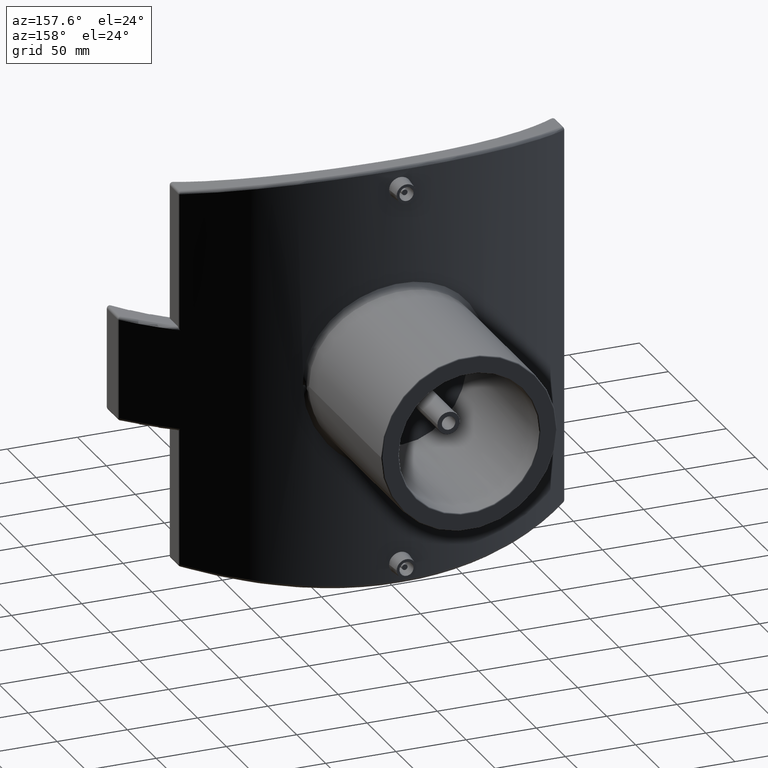
[diagram: clean part render]
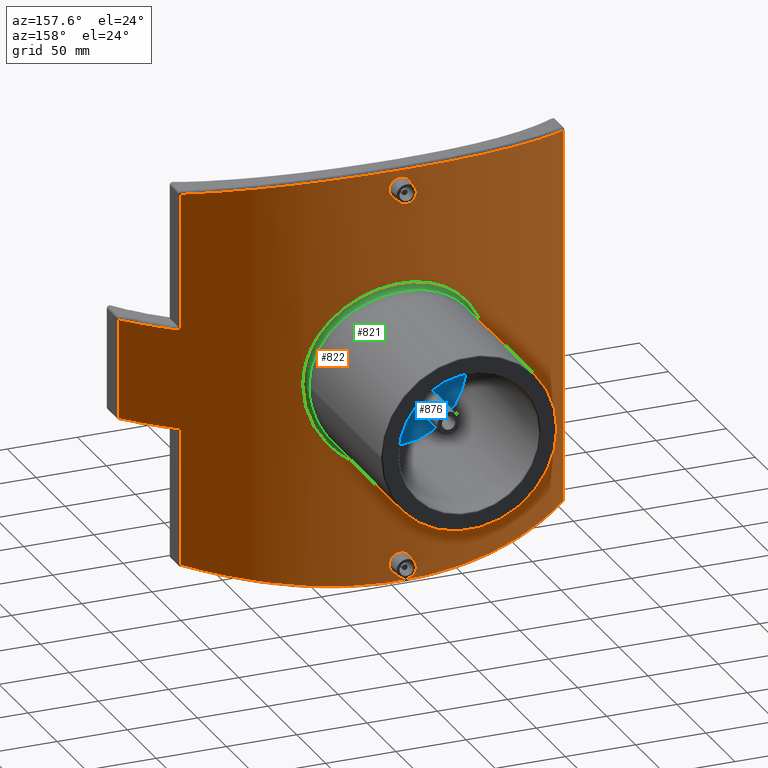
[diagram: same view with three faces highlighted in distinct colors, each labeled with its STEP entity id]
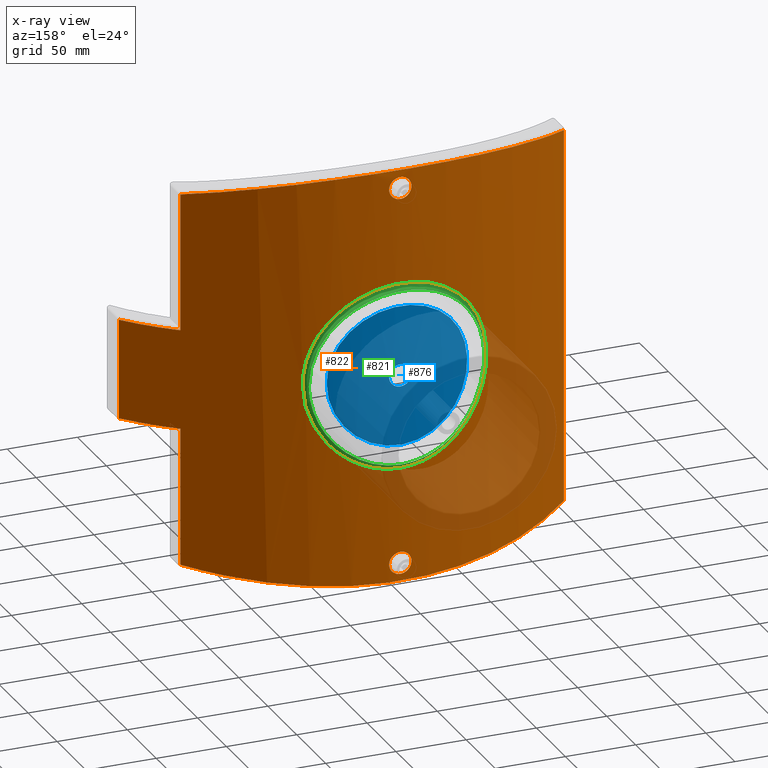
[diagram: x-ray of the same camera — body ghosted, the three highlighted faces saturated]
A machine part, auxiliary view with three faces highlighted in distinct colors.
The next image is the same camera in x-ray (body ghosted, the three faces saturated) — at least one of them is partly hidden behind the body in this view.
Their STEP definitions:

[orange] entity #822 — the highlighted cylindrical surface (partial cylindrical patch) has radius 215 mm, axis along (0, 0, 1).
#29=LINE('',#1550,#59);
#30=LINE('',#1554,#60);
#31=LINE('',#1567,#61);
#32=LINE('',#1580,#62);
#59=VECTOR('',#1032,71.);
#60=VECTOR('',#1035,97.892004877097);
#61=VECTOR('',#1036,266.784009754194);
#62=VECTOR('',#1037,97.892004877097);
#96=B_SPLINE_CURVE_WITH_KNOTS('',3,(#1522,#1523,#1524,#1525,#1526,#1527,
#1528,#1529,#1530,#1531,#1532,#1533,#1534,#1535,#1536,#1537,#1538,#1539,
#1540,#1541,#1542,#1543,#1544,#1545,#1546),.UNSPECIFIED.,.T.,.F.,(4,1,1,
1,1,1,1,1,1,1,1,1,1,1,1,1,1,1,1,1,1,1,4),(-37.9059269029769,-36.5521437992992,
-35.1983606956214,-32.4907944882659,-30.6857503500289,-28.8807062117919,
-27.0756620735549,-26.1731400044364,-25.7218789698772,-25.2706179353179,
-21.6605296588439,-19.855485520607,-18.05044138237,-16.245397244133,-14.440353105896,
-12.635308967659,-10.830264829422,-9.02522069118498,-7.22017655294798,-5.41513241471099,
-2.70756620735549,-1.35378310367775,5.62016446944895E-19),.UNSPECIFIED.);
#97=B_SPLINE_CURVE_WITH_KNOTS('',3,(#1556,#1557,#1558,#1559,#1560,#1561,
#1562,#1563,#1564,#1565),.UNSPECIFIED.,.F.,.F.,(4,1,1,1,1,1,1,4),(-34.0611602883262,
-29.8484664557769,-25.6357726232275,-21.4230787906782,-17.2103849581289,
-12.9976911255795,-8.7849972930302,-4.57230346048087),.UNSPECIFIED.);
#98=B_SPLINE_CURVE_WITH_KNOTS('',3,(#1569,#1570,#1571,#1572,#1573,#1574,
#1575,#1576,#1577,#1578),.UNSPECIFIED.,.F.,.F.,(4,1,1,1,1,1,1,4),(-30.7360959862472,
-26.523402153698,-22.3107083211488,-18.0980144885995,-13.8853206560503,
-9.67262682350105,-5.45993299095181,-1.24723915840258),.UNSPECIFIED.);
#99=B_SPLINE_CURVE_WITH_KNOTS('',3,(#1583,#1584,#1585,#1586,#1587,#1588,
#1589,#1590,#1591,#1592,#1593,#1594,#1595,#1596,#1597,#1598,#1599,#1600,
#1601,#1602,#1603,#1604,#1605,#1606,#1607,#1608,#1609,#1610,#1611,#1612,
#1613,#1614,#1615,#1616),.UNSPECIFIED.,.T.,.F.,(4,2,2,2,2,2,2,2,2,2,2,2,
2,2,2,2,4),(0.,0.298939862461717,0.597879724923433,0.896709336524648,1.19553894812586,
1.49436855972708,1.79319817132829,2.09213803379001,2.39107789625172,2.69001775871344,
2.98895762117516,3.28778723277637,3.58661684437759,3.8854464559788,4.18427606758001,
4.48321593004173,4.78215579250345),.UNSPECIFIED.);
#100=B_SPLINE_CURVE_WITH_KNOTS('',3,(#1618,#1619,#1620,#1621,#1622,#1623,
#1624,#1625,#1626,#1627,#1628,#1629,#1630,#1631,#1632,#1633,#1634,#1635,
#1636,#1637,#1638,#1639,#1640,#1641,#1642,#1643,#1644,#1645,#1646,#1647,
#1648,#1649,#1650,#1651),.UNSPECIFIED.,.T.,.F.,(4,2,2,2,2,2,2,2,2,2,2,2,
2,2,2,2,4),(0.,0.298939862461717,0.597879724923433,0.896709336524648,1.19553894812586,
1.49436855972708,1.79319817132829,2.09213803379001,2.39107789625172,2.69001775871344,
2.98895762117516,3.28778723277637,3.58661684437759,3.8854464559788,4.18427606758001,
4.48321593004173,4.78215579250345),.UNSPECIFIED.);
#117=CYLINDRICAL_SURFACE('',#894,215.);
#161=FACE_BOUND('',#257,.T.);
#162=FACE_BOUND('',#258,.T.);
#163=FACE_BOUND('',#259,.T.);
#185=FACE_OUTER_BOUND('',#256,.T.);
#256=EDGE_LOOP('',(#596,#597,#598,#599,#600,#601,#602,#603));
#257=EDGE_LOOP('',(#604));
#258=EDGE_LOOP('',(#605));
#259=EDGE_LOOP('',(#606));
#339=CIRCLE('',#895,215.);
#340=CIRCLE('',#896,215.);
#403=VERTEX_POINT('',#1520);
#404=VERTEX_POINT('',#1548);
#405=VERTEX_POINT('',#1549);
#406=VERTEX_POINT('',#1551);
#407=VERTEX_POINT('',#1553);
#408=VERTEX_POINT('',#1555);
#409=VERTEX_POINT('',#1566);
#410=VERTEX_POINT('',#1568);
#411=VERTEX_POINT('',#1579);
#412=VERTEX_POINT('',#1582);
#413=VERTEX_POINT('',#1617);
#475=EDGE_CURVE('',#403,#403,#96,.T.);
#476=EDGE_CURVE('',#404,#405,#29,.T.);
#477=EDGE_CURVE('',#406,#404,#339,.T.);
#478=EDGE_CURVE('',#407,#406,#30,.T.);
#479=EDGE_CURVE('',#408,#407,#97,.T.);
#480=EDGE_CURVE('',#409,#408,#31,.T.);
#481=EDGE_CURVE('',#410,#409,#98,.T.);
#482=EDGE_CURVE('',#411,#410,#32,.T.);
#483=EDGE_CURVE('',#405,#411,#340,.T.);
#484=EDGE_CURVE('',#412,#412,#99,.T.);
#485=EDGE_CURVE('',#413,#413,#100,.T.);
#596=ORIENTED_EDGE('',*,*,#476,.F.);
#597=ORIENTED_EDGE('',*,*,#477,.F.);
#598=ORIENTED_EDGE('',*,*,#478,.F.);
#599=ORIENTED_EDGE('',*,*,#479,.F.);
#600=ORIENTED_EDGE('',*,*,#480,.F.);
#601=ORIENTED_EDGE('',*,*,#481,.F.);
#602=ORIENTED_EDGE('',*,*,#482,.F.);
#603=ORIENTED_EDGE('',*,*,#483,.F.);
#604=ORIENTED_EDGE('',*,*,#484,.T.);
#605=ORIENTED_EDGE('',*,*,#485,.T.);
#606=ORIENTED_EDGE('',*,*,#475,.F.);
#822=ADVANCED_FACE('',(#185,#161,#162,#163),#117,.T.);
#894=AXIS2_PLACEMENT_3D('',#1547,#1030,#1031);
#895=AXIS2_PLACEMENT_3D('',#1552,#1033,#1034);
#896=AXIS2_PLACEMENT_3D('',#1581,#1038,#1039);
#1030=DIRECTION('center_axis',(0.,0.,1.));
#1031=DIRECTION('ref_axis',(1.,0.,0.));
#1032=DIRECTION('',(0.,0.,1.));
#1033=DIRECTION('center_axis',(0.,0.,-1.));
#1034=DIRECTION('ref_axis',(0.712959302615589,0.701205414136181,0.));
#1035=DIRECTION('',(0.,0.,1.));
#1036=DIRECTION('',(0.,0.,-1.));
#1037=DIRECTION('',(0.,0.,1.));
#1038=DIRECTION('center_axis',(0.,0.,1.));
#1039=DIRECTION('ref_axis',(0.712959302615589,0.701205414136181,0.));
#1520=CARTESIAN_POINT('',(65.2853881278539,204.848280678641,-1.38777878078145E-16));
#1522=CARTESIAN_POINT('Ctrl Pts',(65.2859122121715,204.847903698663,-1.13261167197488E-5));
#1523=CARTESIAN_POINT('Ctrl Pts',(65.2859243714107,204.847903253842,-5.00309979396538));
#1524=CARTESIAN_POINT('Ctrl Pts',(64.168084313145,205.209309998006,-15.0091696551822));
#1525=CARTESIAN_POINT('Ctrl Pts',(57.6387398921487,207.201109504241,-33.9284075988963));
#1526=CARTESIAN_POINT('Ctrl Pts',(44.1987825445167,210.724826544655,-51.0542014170923));
#1527=CARTESIAN_POINT('Ctrl Pts',(24.3275066323611,213.887911001206,-62.7851596477802));
#1528=CARTESIAN_POINT('Ctrl Pts',(4.99033819610538,215.25076705005,-67.3267396865838));
#1529=CARTESIAN_POINT('Ctrl Pts',(-11.5382168369266,214.858487692808,-66.0473863187583));
#1530=CARTESIAN_POINT('Ctrl Pts',(-22.4768318304903,213.859552368514,-62.5897313603868));
#1531=CARTESIAN_POINT('Ctrl Pts',(-28.4406780591776,213.125497936517,-59.9246192414683));
#1532=CARTESIAN_POINT('Ctrl Pts',(-42.8214232068404,211.060968241871,-52.1834137350143));
#1533=CARTESIAN_POINT('Ctrl Pts',(-57.7038679476369,207.238858348076,-35.8310602116687));
#1534=CARTESIAN_POINT('Ctrl Pts',(-65.5236918765616,204.772562548069,-10.1303949029514));
#1535=CARTESIAN_POINT('Ctrl Pts',(-65.5328612179798,204.772178900979,10.1325935121219));
#1536=CARTESIAN_POINT('Ctrl Pts',(-59.6469237060448,206.621521945999,29.3975165414196));
#1537=CARTESIAN_POINT('Ctrl Pts',(-48.5594895770632,209.592850552179,45.9087918437748));
#1538=CARTESIAN_POINT('Ctrl Pts',(-33.227604917604,212.650797371595,58.3937554389062));
#1539=CARTESIAN_POINT('Ctrl Pts',(-14.8455986581833,214.781457165151,65.794248836055));
#1540=CARTESIAN_POINT('Ctrl Pts',(4.992531698333,215.250168370365,67.3255910473545));
#1541=CARTESIAN_POINT('Ctrl Pts',(24.3278048312172,213.888056536787,62.7852621007934));
#1542=CARTESIAN_POINT('Ctrl Pts',(44.1991756207419,210.72459813921,51.053713633087));
#1543=CARTESIAN_POINT('Ctrl Pts',(57.6389955057348,207.201097014482,33.9278918120269));
#1544=CARTESIAN_POINT('Ctrl Pts',(64.1680113577101,205.209312666933,15.0093611519098));
#1545=CARTESIAN_POINT('Ctrl Pts',(65.2859000529324,204.847904143484,5.00307714173196));
#1546=CARTESIAN_POINT('Ctrl Pts',(65.2859122121715,204.847903698663,-1.13261167197488E-5));
#1547=CARTESIAN_POINT('Origin',(0.,0.,0.));
#1548=CARTESIAN_POINT('',(167.306338028169,135.031808310502,-35.5));
#1549=CARTESIAN_POINT('',(167.306338028169,135.031808310502,35.5));
#1550=CARTESIAN_POINT('',(167.306338028169,135.031808310502,0.));
#1551=CARTESIAN_POINT('',(136.519953051643,166.094257633361,-35.5));
#1552=CARTESIAN_POINT('Origin',(0.,0.,-35.5));
#1553=CARTESIAN_POINT('',(136.519953051643,166.09425763336,-133.392004877097));
#1554=CARTESIAN_POINT('',(136.519953051643,166.09425763336,0.));
#1555=CARTESIAN_POINT('',(-136.519953051643,166.09425763336,-133.392004877097));
#1556=CARTESIAN_POINT('Ctrl Pts',(-136.519953051643,166.09425763336,-133.392004877097));
#1557=CARTESIAN_POINT('Ctrl Pts',(-125.723502697251,174.968320569116,-135.729773666671));
#1558=CARTESIAN_POINT('Ctrl Pts',(-102.362985684374,190.63350263303,-140.2024056175));
#1559=CARTESIAN_POINT('Ctrl Pts',(-63.2085418360928,206.958738335174,-145.332973837477));
#1560=CARTESIAN_POINT('Ctrl Pts',(-21.3774493653246,215.348534643414,-148.114874392193));
#1561=CARTESIAN_POINT('Ctrl Pts',(21.3779264621199,215.349641375073,-148.115915715155));
#1562=CARTESIAN_POINT('Ctrl Pts',(63.2085369696898,206.957927193873,-145.332261953252));
#1563=CARTESIAN_POINT('Ctrl Pts',(102.36306947524,190.633803253483,-140.202709754539));
#1564=CARTESIAN_POINT('Ctrl Pts',(125.723153322602,174.968607735038,-135.729849317197));
#1565=CARTESIAN_POINT('Ctrl Pts',(136.519953051643,166.09425763336,-133.392004877097));
#1566=CARTESIAN_POINT('',(-136.519953051643,166.094257633361,133.392004877097));
#1567=CARTESIAN_POINT('',(-136.519953051643,166.094257633361,0.));
#1568=CARTESIAN_POINT('',(136.519953051643,166.094257633361,133.392004877097));
#1569=CARTESIAN_POINT('Ctrl Pts',(136.519953051643,166.094257633361,133.392004877097));
#1570=CARTESIAN_POINT('Ctrl Pts',(125.723153322602,174.968607735038,135.729849317197));
#1571=CARTESIAN_POINT('Ctrl Pts',(102.362954510343,190.633498880703,140.202408929763));
#1572=CARTESIAN_POINT('Ctrl Pts',(63.2088293749993,206.958599912462,145.332928480881));
#1573=CARTESIAN_POINT('Ctrl Pts',(21.3776392347904,215.348569376209,148.11488559005));
#1574=CARTESIAN_POINT('Ctrl Pts',(-21.3777395679149,215.349596485162,148.11590116896));
#1575=CARTESIAN_POINT('Ctrl Pts',(-63.2082628580006,206.958055565316,145.332304108498));
#1576=CARTESIAN_POINT('Ctrl Pts',(-102.363094452045,190.63381078274,140.202707645887));
#1577=CARTESIAN_POINT('Ctrl Pts',(-125.723502697253,174.968320569114,135.72977366667));
#1578=CARTESIAN_POINT('Ctrl Pts',(-136.519953051643,166.09425763336,133.392004877097));
#1579=CARTESIAN_POINT('',(136.519953051643,166.09425763336,35.5));
#1580=CARTESIAN_POINT('',(136.519953051643,166.09425763336,0.));
#1581=CARTESIAN_POINT('Origin',(0.,0.,35.5));
#1582=CARTESIAN_POINT('',(7.94021187234381,214.853329123433,-135.));
#1583=CARTESIAN_POINT('Ctrl Pts',(-7.94021187234381,214.853329123433,-135.));
#1584=CARTESIAN_POINT('Ctrl Pts',(-7.94021187234381,214.853329123433,-135.996466208206));
#1585=CARTESIAN_POINT('Ctrl Pts',(-7.74052143677593,214.860999612224,-137.05910120673));
#1586=CARTESIAN_POINT('Ctrl Pts',(-6.92901799045989,214.888700344615,-139.013203535085));
#1587=CARTESIAN_POINT('Ctrl Pts',(-6.31721954357068,214.908330851865,-139.904682559071));
#1588=CARTESIAN_POINT('Ctrl Pts',(-4.90667416952584,214.945160712395,-141.311565725442));
#1589=CARTESIAN_POINT('Ctrl Pts',(-4.01400272521873,214.964750037002,-141.92091035169));
#1590=CARTESIAN_POINT('Ctrl Pts',(-2.05871690764931,214.992366517964,-142.728815334707));
#1591=CARTESIAN_POINT('Ctrl Pts',(-0.996098705337381,215.,-142.927379833375));
#1592=CARTESIAN_POINT('Ctrl Pts',(0.996098705337382,215.,-142.927379833375));
#1593=CARTESIAN_POINT('Ctrl Pts',(2.0587169076493,214.992366517964,-142.728815334707));
#1594=CARTESIAN_POINT('Ctrl Pts',(4.01400272521873,214.964750037002,-141.92091035169));
#1595=CARTESIAN_POINT('Ctrl Pts',(4.90667416952584,214.945160712395,-141.311565725442));
#1596=CARTESIAN_POINT('Ctrl Pts',(6.31721954357068,214.908330851865,-139.904682559071));
#1597=CARTESIAN_POINT('Ctrl Pts',(6.92901799045987,214.888700344615,-139.013203535085));
#1598=CARTESIAN_POINT('Ctrl Pts',(7.74052143677592,214.860999612224,-137.05910120673));
#1599=CARTESIAN_POINT('Ctrl Pts',(7.9402118723438,214.853329123433,-135.996466208206));
#1600=CARTESIAN_POINT('Ctrl Pts',(7.9402118723438,214.853329123433,-134.003533791794));
#1601=CARTESIAN_POINT('Ctrl Pts',(7.74052143677593,214.860999612224,-132.94089879327));
#1602=CARTESIAN_POINT('Ctrl Pts',(6.92901799045991,214.888700344615,-130.986796464915));
#1603=CARTESIAN_POINT('Ctrl Pts',(6.31721954357068,214.908330851865,-130.095317440929));
#1604=CARTESIAN_POINT('Ctrl Pts',(4.90667416952584,214.945160712395,-128.688434274558));
#1605=CARTESIAN_POINT('Ctrl Pts',(4.01400272521873,214.964750037002,-128.07908964831));
#1606=CARTESIAN_POINT('Ctrl Pts',(2.05871690764931,214.992366517964,-127.271184665293));
#1607=CARTESIAN_POINT('Ctrl Pts',(0.996098705337383,215.,-127.072620166625));
#1608=CARTESIAN_POINT('Ctrl Pts',(-0.996098705337382,215.,-127.072620166625));
#1609=CARTESIAN_POINT('Ctrl Pts',(-2.05871690764931,214.992366517964,-127.271184665293));
#1610=CARTESIAN_POINT('Ctrl Pts',(-4.01400272521873,214.964750037002,-128.07908964831));
#1611=CARTESIAN_POINT('Ctrl Pts',(-4.90667416952584,214.945160712395,-128.688434274558));
#1612=CARTESIAN_POINT('Ctrl Pts',(-6.31721954357068,214.908330851865,-130.095317440929));
#1613=CARTESIAN_POINT('Ctrl Pts',(-6.92901799045989,214.888700344615,-130.986796464915));
#1614=CARTESIAN_POINT('Ctrl Pts',(-7.74052143677592,214.860999612224,-132.94089879327));
#1615=CARTESIAN_POINT('Ctrl Pts',(-7.94021187234381,214.853329123433,-134.003533791794));
#1616=CARTESIAN_POINT('Ctrl Pts',(-7.94021187234381,214.853329123433,-135.));
#1617=CARTESIAN_POINT('',(7.94021187234381,214.853329123433,135.));
#1618=CARTESIAN_POINT('Ctrl Pts',(7.94021187234381,214.853329123433,135.));
#1619=CARTESIAN_POINT('Ctrl Pts',(7.94021187234381,214.853329123433,135.996466208206));
#1620=CARTESIAN_POINT('Ctrl Pts',(7.74052143677593,214.860999612224,137.05910120673));
#1621=CARTESIAN_POINT('Ctrl Pts',(6.92901799045989,214.888700344615,139.013203535085));
#1622=CARTESIAN_POINT('Ctrl Pts',(6.31721954357068,214.908330851865,139.904682559071));
#1623=CARTESIAN_POINT('Ctrl Pts',(4.90667416952584,214.945160712395,141.311565725442));
#1624=CARTESIAN_POINT('Ctrl Pts',(4.01400272521873,214.964750037002,141.92091035169));
#1625=CARTESIAN_POINT('Ctrl Pts',(2.05871690764931,214.992366517964,142.728815334707));
#1626=CARTESIAN_POINT('Ctrl Pts',(0.996098705337381,215.,142.927379833375));
#1627=CARTESIAN_POINT('Ctrl Pts',(-0.99609870533738,215.,142.927379833375));
#1628=CARTESIAN_POINT('Ctrl Pts',(-2.05871690764931,214.992366517964,142.728815334707));
#1629=CARTESIAN_POINT('Ctrl Pts',(-4.01400272521873,214.964750037002,141.92091035169));
#1630=CARTESIAN_POINT('Ctrl Pts',(-4.90667416952584,214.945160712395,141.311565725442));
#1631=CARTESIAN_POINT('Ctrl Pts',(-6.31721954357068,214.908330851865,139.904682559071));
#1632=CARTESIAN_POINT('Ctrl Pts',(-6.92901799045987,214.888700344615,139.013203535085));
#1633=CARTESIAN_POINT('Ctrl Pts',(-7.74052143677592,214.860999612224,137.05910120673));
#1634=CARTESIAN_POINT('Ctrl Pts',(-7.9402118723438,214.853329123433,135.996466208206));
#1635=CARTESIAN_POINT('Ctrl Pts',(-7.9402118723438,214.853329123433,134.003533791794));
#1636=CARTESIAN_POINT('Ctrl Pts',(-7.74052143677593,214.860999612224,132.94089879327));
#1637=CARTESIAN_POINT('Ctrl Pts',(-6.92901799045991,214.888700344615,130.986796464915));
#1638=CARTESIAN_POINT('Ctrl Pts',(-6.31721954357068,214.908330851865,130.095317440929));
#1639=CARTESIAN_POINT('Ctrl Pts',(-4.90667416952584,214.945160712395,128.688434274558));
#1640=CARTESIAN_POINT('Ctrl Pts',(-4.01400272521874,214.964750037002,128.07908964831));
#1641=CARTESIAN_POINT('Ctrl Pts',(-2.05871690764931,214.992366517964,127.271184665293));
#1642=CARTESIAN_POINT('Ctrl Pts',(-0.996098705337383,215.,127.072620166625));
#1643=CARTESIAN_POINT('Ctrl Pts',(0.99609870533738,215.,127.072620166625));
#1644=CARTESIAN_POINT('Ctrl Pts',(2.05871690764931,214.992366517964,127.271184665293));
#1645=CARTESIAN_POINT('Ctrl Pts',(4.01400272521873,214.964750037002,128.07908964831));
#1646=CARTESIAN_POINT('Ctrl Pts',(4.90667416952583,214.945160712395,128.688434274558));
#1647=CARTESIAN_POINT('Ctrl Pts',(6.31721954357067,214.908330851865,130.095317440929));
#1648=CARTESIAN_POINT('Ctrl Pts',(6.92901799045989,214.888700344615,130.986796464915));
#1649=CARTESIAN_POINT('Ctrl Pts',(7.74052143677592,214.860999612224,132.94089879327));
#1650=CARTESIAN_POINT('Ctrl Pts',(7.94021187234381,214.853329123433,134.003533791794));
#1651=CARTESIAN_POINT('Ctrl Pts',(7.94021187234381,214.853329123433,135.));

[blue] entity #876 — the highlighted cylindrical surface (partial cylindrical patch) has radius 215 mm, axis along (0, 0, 1).
#94=B_SPLINE_CURVE_WITH_KNOTS('',3,(#1299,#1300,#1301,#1302,#1303,#1304,
#1305,#1306,#1307,#1308,#1309,#1310,#1311,#1312,#1313,#1314,#1315,#1316,
#1317,#1318,#1319,#1320,#1321,#1322,#1323,#1324,#1325,#1326,#1327,#1328,
#1329,#1330,#1331,#1332,#1333,#1334,#1335,#1336,#1337,#1338,#1339,#1340,
#1341,#1342,#1343,#1344,#1345,#1346,#1347,#1348,#1349,#1350,#1351,#1352,
#1353,#1354,#1355,#1356,#1357,#1358,#1359,#1360,#1361,#1362,#1363,#1364),
 .UNSPECIFIED.,.T.,.F.,(4,2,2,2,2,2,2,2,2,2,2,2,2,2,2,2,2,2,2,2,2,2,2,2,
2,2,2,2,2,2,2,2,4),(0.,0.945503451316623,1.89100690263325,2.83651035394987,
3.78201380526649,4.72741907452344,5.67282434378038,6.61822961303733,7.56363488229428,
8.50904015155122,9.45444542080817,10.3998506900651,11.3452559593221,12.2907594106387,
13.2362628619553,14.1817663132719,15.1272697645886,16.0727732159052,17.0182766672218,
17.9637801185384,18.909283569855,19.854688839112,20.8000941083689,21.7454993776259,
22.6909046468828,23.6363099161398,24.5817151853967,25.5271204546537,26.4725257239106,
27.4180291752272,28.3635326265439,29.3090360778605,30.2545395291771),
 .UNSPECIFIED.);
#102=B_SPLINE_CURVE_WITH_KNOTS('',3,(#1695,#1696,#1697,#1698,#1699,#1700,
#1701,#1702,#1703,#1704,#1705,#1706,#1707,#1708,#1709,#1710,#1711,#1712,
#1713,#1714,#1715,#1716,#1717,#1718,#1719,#1720,#1721,#1722,#1723,#1724,
#1725,#1726,#1727,#1728),.UNSPECIFIED.,.T.,.F.,(4,2,2,2,2,2,2,2,2,2,2,2,
2,2,2,2,4),(0.,0.301379202912804,0.602758405825608,0.904137589232201,1.20551677263879,
1.50689595604538,1.80827513945198,2.10965434236478,2.41103354527759,2.71241274819039,
3.01379195110319,3.31517113450979,3.61655031791638,3.91792950132297,4.21930868472956,
4.52068788764237,4.82206709055517),.UNSPECIFIED.);
#139=CYLINDRICAL_SURFACE('',#1002,215.);
#177=FACE_BOUND('',#327,.T.);
#239=FACE_OUTER_BOUND('',#326,.T.);
#326=EDGE_LOOP('',(#781));
#327=EDGE_LOOP('',(#782));
#400=VERTEX_POINT('',#1298);
#417=VERTEX_POINT('',#1694);
#471=EDGE_CURVE('',#400,#400,#94,.T.);
#489=EDGE_CURVE('',#417,#417,#102,.T.);
#781=ORIENTED_EDGE('',*,*,#471,.T.);
#782=ORIENTED_EDGE('',*,*,#489,.T.);
#876=ADVANCED_FACE('',(#239,#177),#139,.T.);
#1002=AXIS2_PLACEMENT_3D('',#2239,#1276,#1277);
#1276=DIRECTION('center_axis',(0.,0.,1.));
#1277=DIRECTION('ref_axis',(1.,0.,0.));
#1298=CARTESIAN_POINT('',(50.,209.105236663265,5.55111512312578E-16));
#1299=CARTESIAN_POINT('Ctrl Pts',(50.,209.105236663265,-1.11022302462516E-15));
#1300=CARTESIAN_POINT('Ctrl Pts',(50.,209.105236663265,-3.15167817105541));
#1301=CARTESIAN_POINT('Ctrl Pts',(49.6972043803925,209.178426206258,-6.4071382771709));
#1302=CARTESIAN_POINT('Ctrl Pts',(48.4261033025658,209.476343848205,-12.8754053661216));
#1303=CARTESIAN_POINT('Ctrl Pts',(47.4581125329341,209.700830524305,-16.0882853027271));
#1304=CARTESIAN_POINT('Ctrl Pts',(44.9032736853173,210.262708769101,-22.2441335596826));
#1305=CARTESIAN_POINT('Ctrl Pts',(43.3143951816454,210.599988764996,-25.1922256109001));
#1306=CARTESIAN_POINT('Ctrl Pts',(39.6471839445816,211.321065922824,-30.6412445381313));
#1307=CARTESIAN_POINT('Ctrl Pts',(37.5685868052669,211.704123472275,-33.1420913133878));
#1308=CARTESIAN_POINT('Ctrl Pts',(33.1423211393308,212.442039421727,-37.568356979324));
#1309=CARTESIAN_POINT('Ctrl Pts',(30.6415814092748,212.823034286939,-39.646928244744));
#1310=CARTESIAN_POINT('Ctrl Pts',(25.1924960630185,213.536621159983,-43.3142421473012));
#1311=CARTESIAN_POINT('Ctrl Pts',(22.2442306914371,213.868522133118,-44.9032384403874));
#1312=CARTESIAN_POINT('Ctrl Pts',(16.0880430791466,214.419508037673,-47.4582079946757));
#1313=CARTESIAN_POINT('Ctrl Pts',(12.8750023033336,214.638568651593,-48.4262116182903));
#1314=CARTESIAN_POINT('Ctrl Pts',(6.40669093222548,214.92890719588,-49.6972631773457));
#1315=CARTESIAN_POINT('Ctrl Pts',(3.15135089752316,215.,-50.));
#1316=CARTESIAN_POINT('Ctrl Pts',(-3.15135089752315,215.,-50.));
#1317=CARTESIAN_POINT('Ctrl Pts',(-6.40669093222548,214.92890719588,-49.6972631773457));
#1318=CARTESIAN_POINT('Ctrl Pts',(-12.8750023033336,214.638568651593,-48.4262116182902));
#1319=CARTESIAN_POINT('Ctrl Pts',(-16.0880430791466,214.419508037673,-47.4582079946757));
#1320=CARTESIAN_POINT('Ctrl Pts',(-22.2442306914371,213.868522133118,-44.9032384403874));
#1321=CARTESIAN_POINT('Ctrl Pts',(-25.1924960630184,213.536621159983,-43.3142421473012));
#1322=CARTESIAN_POINT('Ctrl Pts',(-30.6415814092748,212.823034286939,-39.646928244744));
#1323=CARTESIAN_POINT('Ctrl Pts',(-33.1423211393308,212.442039421727,-37.568356979324));
#1324=CARTESIAN_POINT('Ctrl Pts',(-37.5685868052669,211.704123472275,-33.1420913133878));
#1325=CARTESIAN_POINT('Ctrl Pts',(-39.6471839445816,211.321065922825,-30.6412445381313));
#1326=CARTESIAN_POINT('Ctrl Pts',(-43.3143951816454,210.599988764996,-25.1922256109001));
#1327=CARTESIAN_POINT('Ctrl Pts',(-44.9032736853173,210.262708769101,-22.2441335596826));
#1328=CARTESIAN_POINT('Ctrl Pts',(-47.4581125329341,209.700830524305,-16.0882853027271));
#1329=CARTESIAN_POINT('Ctrl Pts',(-48.4261033025658,209.476343848205,-12.8754053661216));
#1330=CARTESIAN_POINT('Ctrl Pts',(-49.6972043803926,209.178426206258,-6.4071382771709));
#1331=CARTESIAN_POINT('Ctrl Pts',(-50.,209.105236663265,-3.15167817105541));
#1332=CARTESIAN_POINT('Ctrl Pts',(-50.,209.105236663265,3.15167817105541));
#1333=CARTESIAN_POINT('Ctrl Pts',(-49.6972043803926,209.178426206258,6.40713827717089));
#1334=CARTESIAN_POINT('Ctrl Pts',(-48.4261033025658,209.476343848205,12.8754053661216));
#1335=CARTESIAN_POINT('Ctrl Pts',(-47.4581125329341,209.700830524305,16.0882853027271));
#1336=CARTESIAN_POINT('Ctrl Pts',(-44.9032736853173,210.262708769101,22.2441335596826));
#1337=CARTESIAN_POINT('Ctrl Pts',(-43.3143951816454,210.599988764996,25.1922256109001));
#1338=CARTESIAN_POINT('Ctrl Pts',(-39.6471839445816,211.321065922825,30.6412445381313));
#1339=CARTESIAN_POINT('Ctrl Pts',(-37.5685868052669,211.704123472275,33.1420913133878));
#1340=CARTESIAN_POINT('Ctrl Pts',(-33.1423211393308,212.442039421727,37.568356979324));
#1341=CARTESIAN_POINT('Ctrl Pts',(-30.6415814092748,212.823034286939,39.646928244744));
#1342=CARTESIAN_POINT('Ctrl Pts',(-25.1924960630185,213.536621159983,43.3142421473012));
#1343=CARTESIAN_POINT('Ctrl Pts',(-22.2442306914371,213.868522133118,44.9032384403874));
#1344=CARTESIAN_POINT('Ctrl Pts',(-16.0880430791466,214.419508037673,47.4582079946757));
#1345=CARTESIAN_POINT('Ctrl Pts',(-12.8750023033337,214.638568651593,48.4262116182902));
#1346=CARTESIAN_POINT('Ctrl Pts',(-6.4066909322255,214.92890719588,49.6972631773457));
#1347=CARTESIAN_POINT('Ctrl Pts',(-3.15135089752317,215.,50.));
#1348=CARTESIAN_POINT('Ctrl Pts',(3.15135089752315,215.,50.));
#1349=CARTESIAN_POINT('Ctrl Pts',(6.40669093222548,214.92890719588,49.6972631773457));
#1350=CARTESIAN_POINT('Ctrl Pts',(12.8750023033336,214.638568651593,48.4262116182902));
#1351=CARTESIAN_POINT('Ctrl Pts',(16.0880430791466,214.419508037673,47.4582079946757));
#1352=CARTESIAN_POINT('Ctrl Pts',(22.2442306914371,213.868522133118,44.9032384403874));
#1353=CARTESIAN_POINT('Ctrl Pts',(25.1924960630185,213.536621159983,43.3142421473012));
#1354=CARTESIAN_POINT('Ctrl Pts',(30.6415814092748,212.823034286939,39.646928244744));
#1355=CARTESIAN_POINT('Ctrl Pts',(33.1423211393308,212.442039421727,37.568356979324));
#1356=CARTESIAN_POINT('Ctrl Pts',(37.5685868052669,211.704123472275,33.1420913133878));
#1357=CARTESIAN_POINT('Ctrl Pts',(39.6471839445816,211.321065922824,30.6412445381313));
#1358=CARTESIAN_POINT('Ctrl Pts',(43.3143951816454,210.599988764996,25.1922256109001));
#1359=CARTESIAN_POINT('Ctrl Pts',(44.9032736853173,210.262708769101,22.2441335596826));
#1360=CARTESIAN_POINT('Ctrl Pts',(47.4581125329341,209.700830524305,16.0882853027271));
#1361=CARTESIAN_POINT('Ctrl Pts',(48.4261033025658,209.476343848205,12.8754053661217));
#1362=CARTESIAN_POINT('Ctrl Pts',(49.6972043803926,209.178426206258,6.40713827717092));
#1363=CARTESIAN_POINT('Ctrl Pts',(50.,209.105236663265,3.15167817105542));
#1364=CARTESIAN_POINT('Ctrl Pts',(50.,209.105236663265,-2.22044604925031E-15));
#1694=CARTESIAN_POINT('',(8.,214.851111237527,-5.55111512312578E-16));
#1695=CARTESIAN_POINT('Ctrl Pts',(8.,214.851111237527,2.77555756156289E-16));
#1696=CARTESIAN_POINT('Ctrl Pts',(8.,214.851111237527,1.00459734304268));
#1697=CARTESIAN_POINT('Ctrl Pts',(7.79921201097805,214.858881920672,2.07609255415567));
#1698=CARTESIAN_POINT('Ctrl Pts',(6.98275387996581,214.886965626921,4.04709978309557));
#1699=CARTESIAN_POINT('Ctrl Pts',(6.36708885078587,214.906875092909,4.94661964819889));
#1700=CARTESIAN_POINT('Ctrl Pts',(4.94661969416752,214.944261928921,6.36708880481724));
#1701=CARTESIAN_POINT('Ctrl Pts',(4.04709980727755,214.964165380116,6.98275386659363));
#1702=CARTESIAN_POINT('Ctrl Pts',(2.07609251364437,214.992235334888,7.79921203111439));
#1703=CARTESIAN_POINT('Ctrl Pts',(1.00459727802197,215.,8.));
#1704=CARTESIAN_POINT('Ctrl Pts',(-1.00459727802197,215.,8.));
#1705=CARTESIAN_POINT('Ctrl Pts',(-2.07609251364437,214.992235334888,7.79921203111439));
#1706=CARTESIAN_POINT('Ctrl Pts',(-4.04709980727754,214.964165380116,6.98275386659363));
#1707=CARTESIAN_POINT('Ctrl Pts',(-4.94661969416752,214.944261928921,6.36708880481725));
#1708=CARTESIAN_POINT('Ctrl Pts',(-6.36708885078587,214.906875092909,4.94661964819889));
#1709=CARTESIAN_POINT('Ctrl Pts',(-6.98275387996581,214.886965626921,4.04709978309557));
#1710=CARTESIAN_POINT('Ctrl Pts',(-7.79921201097805,214.858881920672,2.07609255415567));
#1711=CARTESIAN_POINT('Ctrl Pts',(-8.,214.851111237527,1.00459734304268));
#1712=CARTESIAN_POINT('Ctrl Pts',(-8.,214.851111237527,-1.00459734304268));
#1713=CARTESIAN_POINT('Ctrl Pts',(-7.79921201097805,214.858881920672,-2.07609255415567));
#1714=CARTESIAN_POINT('Ctrl Pts',(-6.98275387996581,214.886965626921,-4.04709978309557));
#1715=CARTESIAN_POINT('Ctrl Pts',(-6.36708885078587,214.906875092909,-4.94661964819889));
#1716=CARTESIAN_POINT('Ctrl Pts',(-4.94661969416752,214.944261928921,-6.36708880481724));
#1717=CARTESIAN_POINT('Ctrl Pts',(-4.04709980727755,214.964165380116,-6.98275386659363));
#1718=CARTESIAN_POINT('Ctrl Pts',(-2.07609251364437,214.992235334888,-7.79921203111439));
#1719=CARTESIAN_POINT('Ctrl Pts',(-1.00459727802198,215.,-8.));
#1720=CARTESIAN_POINT('Ctrl Pts',(1.00459727802197,215.,-8.));
#1721=CARTESIAN_POINT('Ctrl Pts',(2.07609251364437,214.992235334888,-7.79921203111439));
#1722=CARTESIAN_POINT('Ctrl Pts',(4.04709980727755,214.964165380116,-6.98275386659363));
#1723=CARTESIAN_POINT('Ctrl Pts',(4.94661969416752,214.944261928921,-6.36708880481724));
#1724=CARTESIAN_POINT('Ctrl Pts',(6.36708885078587,214.906875092909,-4.94661964819889));
#1725=CARTESIAN_POINT('Ctrl Pts',(6.98275387996581,214.886965626921,-4.04709978309556));
#1726=CARTESIAN_POINT('Ctrl Pts',(7.79921201097805,214.858881920672,-2.07609255415567));
#1727=CARTESIAN_POINT('Ctrl Pts',(8.,214.851111237527,-1.00459734304268));
#1728=CARTESIAN_POINT('Ctrl Pts',(8.,214.851111237527,-5.55111512312578E-16));
#2239=CARTESIAN_POINT('Origin',(0.,0.,0.));

[green] entity #821 — the highlighted face is a freeform B-spline surface patch.
#89=B_SPLINE_SURFACE_WITH_KNOTS('',3,3,((#1395,#1396,#1397,#1398,#1399,
#1400,#1401,#1402,#1403,#1404,#1405,#1406,#1407,#1408,#1409,#1410,#1411,
#1412,#1413,#1414,#1415,#1416,#1417,#1418,#1419),(#1420,#1421,#1422,#1423,
#1424,#1425,#1426,#1427,#1428,#1429,#1430,#1431,#1432,#1433,#1434,#1435,
#1436,#1437,#1438,#1439,#1440,#1441,#1442,#1443,#1444),(#1445,#1446,#1447,
#1448,#1449,#1450,#1451,#1452,#1453,#1454,#1455,#1456,#1457,#1458,#1459,
#1460,#1461,#1462,#1463,#1464,#1465,#1466,#1467,#1468,#1469),(#1470,#1471,
#1472,#1473,#1474,#1475,#1476,#1477,#1478,#1479,#1480,#1481,#1482,#1483,
#1484,#1485,#1486,#1487,#1488,#1489,#1490,#1491,#1492,#1493,#1494),(#1495,
#1496,#1497,#1498,#1499,#1500,#1501,#1502,#1503,#1504,#1505,#1506,#1507,
#1508,#1509,#1510,#1511,#1512,#1513,#1514,#1515,#1516,#1517,#1518,#1519)),
 .UNSPECIFIED.,.F.,.T.,.F.,(4,1,4),(4,1,1,1,1,1,1,1,1,1,1,1,1,1,1,1,1,1,
1,1,1,1,4),(0.,0.571428571428571,1.),(-5.62016446944895E-19,1.35378310367775,
2.70756620735549,5.41513241471099,7.22017655294798,9.02522069118498,10.830264829422,
12.635308967659,14.440353105896,16.245397244133,18.05044138237,19.855485520607,
21.6605296588439,25.2706179353179,25.7218789698772,26.1731400044364,27.0756620735549,
28.8807062117919,30.6857503500289,32.4907944882659,35.1983606956214,36.5521437992992,
37.9059269029769),.UNSPECIFIED.);
#95=B_SPLINE_CURVE_WITH_KNOTS('',3,(#1370,#1371,#1372,#1373,#1374,#1375,
#1376,#1377,#1378,#1379,#1380,#1381,#1382,#1383,#1384,#1385,#1386,#1387,
#1388,#1389,#1390,#1391,#1392,#1393,#1394),.UNSPECIFIED.,.T.,.F.,(4,1,1,
1,1,1,1,1,1,1,1,1,1,1,1,1,1,1,1,1,1,1,4),(-5.62016446944895E-19,1.35378310367775,
2.70756620735549,5.41513241471099,7.22017655294798,9.02522069118498,10.830264829422,
12.635308967659,14.440353105896,16.245397244133,18.05044138237,19.855485520607,
21.6605296588439,25.2706179353179,25.7218789698772,26.1731400044364,27.0756620735549,
28.8807062117919,30.6857503500289,32.4907944882659,35.1983606956214,36.5521437992992,
37.9059269029769),.UNSPECIFIED.);
#96=B_SPLINE_CURVE_WITH_KNOTS('',3,(#1522,#1523,#1524,#1525,#1526,#1527,
#1528,#1529,#1530,#1531,#1532,#1533,#1534,#1535,#1536,#1537,#1538,#1539,
#1540,#1541,#1542,#1543,#1544,#1545,#1546),.UNSPECIFIED.,.T.,.F.,(4,1,1,
1,1,1,1,1,1,1,1,1,1,1,1,1,1,1,1,1,1,1,4),(-37.9059269029769,-36.5521437992992,
-35.1983606956214,-32.4907944882659,-30.6857503500289,-28.8807062117919,
-27.0756620735549,-26.1731400044364,-25.7218789698772,-25.2706179353179,
-21.6605296588439,-19.855485520607,-18.05044138237,-16.245397244133,-14.440353105896,
-12.635308967659,-10.830264829422,-9.02522069118498,-7.22017655294798,-5.41513241471099,
-2.70756620735549,-1.35378310367775,5.62016446944895E-19),.UNSPECIFIED.);
#184=FACE_OUTER_BOUND('',#255,.T.);
#255=EDGE_LOOP('',(#592,#593,#594,#595));
#338=CIRCLE('',#893,3.99999999999999);
#402=VERTEX_POINT('',#1369);
#403=VERTEX_POINT('',#1520);
#473=EDGE_CURVE('',#402,#402,#95,.T.);
#474=EDGE_CURVE('',#403,#402,#338,.T.);
#475=EDGE_CURVE('',#403,#403,#96,.T.);
#592=ORIENTED_EDGE('',*,*,#474,.T.);
#593=ORIENTED_EDGE('',*,*,#473,.T.);
#594=ORIENTED_EDGE('',*,*,#474,.F.);
#595=ORIENTED_EDGE('',*,*,#475,.T.);
#821=ADVANCED_FACE('',(#184),#89,.T.);
#893=AXIS2_PLACEMENT_3D('',#1521,#1028,#1029);
#1028=DIRECTION('center_axis',(0.,0.,-1.));
#1029=DIRECTION('ref_axis',(-0.303652968036531,-0.95278270083089,0.));
#1369=CARTESIAN_POINT('',(62.5,208.659411481965,-1.11022302462516E-15));
#1370=CARTESIAN_POINT('Ctrl Pts',(62.5005017243642,208.659027488405,-1.06448465471112E-5));
#1371=CARTESIAN_POINT('Ctrl Pts',(62.5004900838965,208.659027941502,4.70214017080073));
#1372=CARTESIAN_POINT('Ctrl Pts',(61.4302958879983,209.027160344457,14.1065424360056));
#1373=CARTESIAN_POINT('Ctrl Pts',(55.1798392015909,211.056001144984,31.887116364687));
#1374=CARTESIAN_POINT('Ctrl Pts',(42.3134265647075,214.645055779009,47.9828135649314));
#1375=CARTESIAN_POINT('Ctrl Pts',(23.2898638662203,217.867369216542,59.0087049819486));
#1376=CARTESIAN_POINT('Ctrl Pts',(4.7795263242478,219.254822665627,63.2759314354836));
#1377=CARTESIAN_POINT('Ctrl Pts',(-14.2122141377083,218.777391251945,61.8367000338863));
#1378=CARTESIAN_POINT('Ctrl Pts',(-31.8099557481871,216.607091276183,54.8813490967163));
#1379=CARTESIAN_POINT('Ctrl Pts',(-46.4877085914358,213.492252422918,43.1473607554274));
#1380=CARTESIAN_POINT('Ctrl Pts',(-57.1020995437306,210.465643284529,27.6292448697553));
#1381=CARTESIAN_POINT('Ctrl Pts',(-62.7369146998495,208.581893857276,9.5231142031221));
#1382=CARTESIAN_POINT('Ctrl Pts',(-62.7281365665631,208.582284641986,-9.52104784111975));
#1383=CARTESIAN_POINT('Ctrl Pts',(-55.2419438736339,211.094465015018,-33.6758084696135));
#1384=CARTESIAN_POINT('Ctrl Pts',(-40.9944556841146,214.987683930092,-49.0445617810285));
#1385=CARTESIAN_POINT('Ctrl Pts',(-27.2272621741558,217.090623479522,-56.3201308660416));
#1386=CARTESIAN_POINT('Ctrl Pts',(-21.517862261223,217.838334738161,-58.8249354890853));
#1387=CARTESIAN_POINT('Ctrl Pts',(-11.0459411054683,218.855854905698,-62.0746112018405));
#1388=CARTESIAN_POINT('Ctrl Pts',(4.77742640735741,219.255432483539,-63.2770109836315));
#1389=CARTESIAN_POINT('Ctrl Pts',(23.2895783899592,217.867220973321,-59.0086086915226));
#1390=CARTESIAN_POINT('Ctrl Pts',(42.3130502590015,214.645288433857,-47.9832720085454));
#1391=CARTESIAN_POINT('Ctrl Pts',(55.1795944937075,211.05601386711,-31.8876011267822));
#1392=CARTESIAN_POINT('Ctrl Pts',(61.4303657308042,209.027157625876,-14.1063624578781));
#1393=CARTESIAN_POINT('Ctrl Pts',(62.5005133648318,208.659027035308,-4.70216146049381));
#1394=CARTESIAN_POINT('Ctrl Pts',(62.5005017243642,208.659027488405,-1.06448465471112E-5));
#1395=CARTESIAN_POINT('Ctrl Pts',(65.2859122121715,204.847903698663,-1.13261167197488E-5));
#1396=CARTESIAN_POINT('Ctrl Pts',(65.2859000529324,204.847904143484,5.00307714173196));
#1397=CARTESIAN_POINT('Ctrl Pts',(64.1680113577101,205.209312666933,15.0093611519098));
#1398=CARTESIAN_POINT('Ctrl Pts',(57.6389955057348,207.201097014482,33.9278918120269));
#1399=CARTESIAN_POINT('Ctrl Pts',(44.1991756207419,210.72459813921,51.053713633087));
#1400=CARTESIAN_POINT('Ctrl Pts',(24.3278048312172,213.888056536787,62.7852621007934));
#1401=CARTESIAN_POINT('Ctrl Pts',(4.992531698333,215.250168370365,67.3255910473545));
#1402=CARTESIAN_POINT('Ctrl Pts',(-14.8455986581833,214.781457165151,65.794248836055));
#1403=CARTESIAN_POINT('Ctrl Pts',(-33.227604917604,212.650797371595,58.3937554389062));
#1404=CARTESIAN_POINT('Ctrl Pts',(-48.5594895770632,209.592850552179,45.9087918437748));
#1405=CARTESIAN_POINT('Ctrl Pts',(-59.6469237060448,206.621521945999,29.3975165414196));
#1406=CARTESIAN_POINT('Ctrl Pts',(-65.5328612179798,204.772178900979,10.1325935121219));
#1407=CARTESIAN_POINT('Ctrl Pts',(-65.5236918765616,204.772562548069,-10.1303949029514));
#1408=CARTESIAN_POINT('Ctrl Pts',(-57.7038679476369,207.238858348076,-35.8310602116687));
#1409=CARTESIAN_POINT('Ctrl Pts',(-42.8214232068404,211.060968241871,-52.1834137350143));
#1410=CARTESIAN_POINT('Ctrl Pts',(-28.4406780591776,213.125497936517,-59.9246192414683));
#1411=CARTESIAN_POINT('Ctrl Pts',(-22.4768318304903,213.859552368514,-62.5897313603868));
#1412=CARTESIAN_POINT('Ctrl Pts',(-11.5382168369266,214.858487692808,-66.0473863187583));
#1413=CARTESIAN_POINT('Ctrl Pts',(4.99033819610538,215.25076705005,-67.3267396865838));
#1414=CARTESIAN_POINT('Ctrl Pts',(24.3275066323611,213.887911001206,-62.7851596477802));
#1415=CARTESIAN_POINT('Ctrl Pts',(44.1987825445167,210.724826544655,-51.0542014170923));
#1416=CARTESIAN_POINT('Ctrl Pts',(57.6387398921487,207.201109504241,-33.9284075988963));
#1417=CARTESIAN_POINT('Ctrl Pts',(64.168084313145,205.209309998006,-15.0091696551822));
#1418=CARTESIAN_POINT('Ctrl Pts',(65.2859243714107,204.847903253842,-5.00309979396538));
#1419=CARTESIAN_POINT('Ctrl Pts',(65.2859122121715,204.847903698663,-1.13261167197488E-5));
#1420=CARTESIAN_POINT('Ctrl Pts',(64.3696181001274,205.140009162738,-1.09611378060225E-5));
#1421=CARTESIAN_POINT('Ctrl Pts',(64.3696050709487,205.140009645369,4.92707790902523));
#1422=CARTESIAN_POINT('Ctrl Pts',(63.2592599019792,205.493379497108,14.7813594870401));
#1423=CARTESIAN_POINT('Ctrl Pts',(56.7796936992587,207.438951886041,33.3998359689848));
#1424=CARTESIAN_POINT('Ctrl Pts',(43.4697204481534,210.86973225611,50.2121999291158));
#1425=CARTESIAN_POINT('Ctrl Pts',(23.8891592842517,213.928784211955,61.6813543468195));
#1426=CARTESIAN_POINT('Ctrl Pts',(4.89863271877878,215.240584217613,66.1076567652096));
#1427=CARTESIAN_POINT('Ctrl Pts',(-14.5703910017221,214.789587282416,64.6157705118664));
#1428=CARTESIAN_POINT('Ctrl Pts',(-32.6505572809935,212.73399320855,57.392319298621));
#1429=CARTESIAN_POINT('Ctrl Pts',(-47.787295420109,209.768505414391,45.1640960753095));
#1430=CARTESIAN_POINT('Ctrl Pts',(-58.7708910887638,206.873362741684,28.9436128253885));
#1431=CARTESIAN_POINT('Ctrl Pts',(-64.6146469777729,205.066204263893,9.98005793129853));
#1432=CARTESIAN_POINT('Ctrl Pts',(-64.6058861933456,205.066142747712,-9.97773392963988));
#1433=CARTESIAN_POINT('Ctrl Pts',(-56.8408868405783,207.477473295543,-35.2776842805883));
#1434=CARTESIAN_POINT('Ctrl Pts',(-42.1073839182365,211.195801110457,-51.3169550337035));
#1435=CARTESIAN_POINT('Ctrl Pts',(-27.9457993706858,213.191005018586,-58.8837626981042));
#1436=CARTESIAN_POINT('Ctrl Pts',(-22.077128108226,213.900113883857,-61.4879664706042));
#1437=CARTESIAN_POINT('Ctrl Pts',(-11.3248401519351,214.863673949061,-64.862277014485));
#1438=CARTESIAN_POINT('Ctrl Pts',(4.89661982265497,215.241159910847,-66.1088215860458));
#1439=CARTESIAN_POINT('Ctrl Pts',(23.8888060926052,213.928644800266,-61.681236148024));
#1440=CARTESIAN_POINT('Ctrl Pts',(43.4693793627462,210.869952207107,-50.2126914725536));
#1441=CARTESIAN_POINT('Ctrl Pts',(56.7794202225548,207.43896511347,-33.400337119508));
#1442=CARTESIAN_POINT('Ctrl Pts',(63.2593380770515,205.493376601321,-14.7811737339381));
#1443=CARTESIAN_POINT('Ctrl Pts',(64.3696311293061,205.140008680107,-4.92709983130083));
#1444=CARTESIAN_POINT('Ctrl Pts',(64.3696181001274,205.140009162738,-1.09611378060225E-5));
#1445=CARTESIAN_POINT('Ctrl Pts',(62.9659657912298,206.253323271189,-9.77901317575005E-6));
#1446=CARTESIAN_POINT('Ctrl Pts',(62.9659519497214,206.253322841031,4.79466351859821));
#1447=CARTESIAN_POINT('Ctrl Pts',(61.8692932844643,206.60443426157,14.3841037669324));
#1448=CARTESIAN_POINT('Ctrl Pts',(55.4763566654529,208.538170555754,32.4809544246988));
#1449=CARTESIAN_POINT('Ctrl Pts',(42.3798994817884,211.937181778633,48.7493216851738));
#1450=CARTESIAN_POINT('Ctrl Pts',(23.2407972148584,214.952935631174,59.768650670861));
#1451=CARTESIAN_POINT('Ctrl Pts',(4.75992585312661,216.241095914083,64.0002427532128));
#1452=CARTESIAN_POINT('Ctrl Pts',(-14.1641922106873,215.798806803932,62.5758391664559));
#1453=CARTESIAN_POINT('Ctrl Pts',(-31.7940953251479,213.776552700344,55.6550334968095));
#1454=CARTESIAN_POINT('Ctrl Pts',(-46.6271774856217,210.846921954962,43.8693253011519));
#1455=CARTESIAN_POINT('Ctrl Pts',(-57.4391056557035,207.975998252722,28.1530852422627));
#1456=CARTESIAN_POINT('Ctrl Pts',(-63.2075376267764,206.180111881599,9.71433461761015));
#1457=CARTESIAN_POINT('Ctrl Pts',(-63.1995418956579,206.179578748814,-9.71161992579585));
#1458=CARTESIAN_POINT('Ctrl Pts',(-55.5325150981083,208.577601446491,-34.3144776118393));
#1459=CARTESIAN_POINT('Ctrl Pts',(-41.0422117450961,212.259270314127,-49.8111518736896));
#1460=CARTESIAN_POINT('Ctrl Pts',(-27.2111731552216,214.225160623264,-57.0791312462892));
#1461=CARTESIAN_POINT('Ctrl Pts',(-21.4849410061203,214.924011412511,-59.5794424988223));
#1462=CARTESIAN_POINT('Ctrl Pts',(-11.0096961677993,215.871249573139,-62.810845358365));
#1463=CARTESIAN_POINT('Ctrl Pts',(4.75811252239285,216.241797548215,-64.0015572715403));
#1464=CARTESIAN_POINT('Ctrl Pts',(23.2403908436284,214.952741250691,-59.7684534650046));
#1465=CARTESIAN_POINT('Ctrl Pts',(42.379613805556,211.93744387339,-48.7498615964951));
#1466=CARTESIAN_POINT('Ctrl Pts',(55.4760665158028,208.538165033395,-32.4814107535173));
#1467=CARTESIAN_POINT('Ctrl Pts',(61.8693763335142,206.604436842517,-14.3839360187359));
#1468=CARTESIAN_POINT('Ctrl Pts',(62.9659796327381,206.253323701347,-4.79468307662455));
#1469=CARTESIAN_POINT('Ctrl Pts',(62.9659657912298,206.253323271189,-9.77901317575005E-6));
#1470=CARTESIAN_POINT('Ctrl Pts',(62.5005142672906,207.937729537377,-1.03613322518252E-5));
#1471=CARTESIAN_POINT('Ctrl Pts',(62.5005017142515,207.937729623245,4.71935568693948));
#1472=CARTESIAN_POINT('Ctrl Pts',(61.4222332049214,208.300743563918,14.1581860963266));
#1473=CARTESIAN_POINT('Ctrl Pts',(55.12993720542,210.301225678123,31.9877563986417));
#1474=CARTESIAN_POINT('Ctrl Pts',(42.2063671223287,213.83329561647,48.0751204087547));
#1475=CARTESIAN_POINT('Ctrl Pts',(23.1953544155204,216.993975019101,59.0393962646912));
#1476=CARTESIAN_POINT('Ctrl Pts',(4.75629019577234,218.351753504163,63.2686784698331));
#1477=CARTESIAN_POINT('Ctrl Pts',(-14.1471990063055,217.884848323054,61.84337785491));
#1478=CARTESIAN_POINT('Ctrl Pts',(-31.7019889671457,215.75874267622,54.9399948436314));
#1479=CARTESIAN_POINT('Ctrl Pts',(-46.3983966779226,212.699267825897,43.2455097141904));
#1480=CARTESIAN_POINT('Ctrl Pts',(-57.0635761669271,209.71922264158,27.7209463122206));
#1481=CARTESIAN_POINT('Ctrl Pts',(-62.7384044832924,207.861767156196,9.55981552797363));
#1482=CARTESIAN_POINT('Ctrl Pts',(-62.7300243430543,207.861867704982,-9.55751818454987));
#1483=CARTESIAN_POINT('Ctrl Pts',(-55.1891133683557,210.339964852881,-33.7873906665563));
#1484=CARTESIAN_POINT('Ctrl Pts',(-40.8837414109146,214.169790994698,-49.1311694643579));
#1485=CARTESIAN_POINT('Ctrl Pts',(-27.13394300854,216.231829151667,-56.364767022205));
#1486=CARTESIAN_POINT('Ctrl Pts',(-21.4357445198892,216.965007327814,-58.8542327747896));
#1487=CARTESIAN_POINT('Ctrl Pts',(-10.9958699922856,217.961488525416,-62.0788345029534));
#1488=CARTESIAN_POINT('Ctrl Pts',(4.75432092907403,218.352405668409,-63.2698220548288));
#1489=CARTESIAN_POINT('Ctrl Pts',(23.1950176392533,216.993806666468,-59.0392704271151));
#1490=CARTESIAN_POINT('Ctrl Pts',(42.2060311766041,213.833542084803,-48.0756006874119));
#1491=CARTESIAN_POINT('Ctrl Pts',(55.1296736693213,210.301230825337,-31.9882315537024));
#1492=CARTESIAN_POINT('Ctrl Pts',(61.4223085231557,208.300743048714,-14.1580101933037));
#1493=CARTESIAN_POINT('Ctrl Pts',(62.5005268203296,207.93772945151,-4.71937640960397));
#1494=CARTESIAN_POINT('Ctrl Pts',(62.5005142672906,207.937729537377,-1.03613322518252E-5));
#1495=CARTESIAN_POINT('Ctrl Pts',(62.5005017243642,208.659027488405,-1.06448465471112E-5));
#1496=CARTESIAN_POINT('Ctrl Pts',(62.5004900838965,208.659027941502,4.70214017080073));
#1497=CARTESIAN_POINT('Ctrl Pts',(61.4302958879983,209.027160344457,14.1065424360056));
#1498=CARTESIAN_POINT('Ctrl Pts',(55.1798392015909,211.056001144984,31.887116364687));
#1499=CARTESIAN_POINT('Ctrl Pts',(42.3134265647075,214.645055779009,47.9828135649314));
#1500=CARTESIAN_POINT('Ctrl Pts',(23.2898638662203,217.867369216542,59.0087049819486));
#1501=CARTESIAN_POINT('Ctrl Pts',(4.7795263242478,219.254822665627,63.2759314354836));
#1502=CARTESIAN_POINT('Ctrl Pts',(-14.2122141377083,218.777391251945,61.8367000338863));
#1503=CARTESIAN_POINT('Ctrl Pts',(-31.8099557481871,216.607091276183,54.8813490967163));
#1504=CARTESIAN_POINT('Ctrl Pts',(-46.4877085914358,213.492252422918,43.1473607554274));
#1505=CARTESIAN_POINT('Ctrl Pts',(-57.1020995437306,210.465643284529,27.6292448697553));
#1506=CARTESIAN_POINT('Ctrl Pts',(-62.7369146998495,208.581893857276,9.5231142031221));
#1507=CARTESIAN_POINT('Ctrl Pts',(-62.7281365665631,208.582284641986,-9.52104784111975));
#1508=CARTESIAN_POINT('Ctrl Pts',(-55.2419438736339,211.094465015018,-33.6758084696135));
#1509=CARTESIAN_POINT('Ctrl Pts',(-40.9944556841146,214.987683930092,-49.0445617810285));
#1510=CARTESIAN_POINT('Ctrl Pts',(-27.2272621741558,217.090623479522,-56.3201308660416));
#1511=CARTESIAN_POINT('Ctrl Pts',(-21.517862261223,217.838334738161,-58.8249354890853));
#1512=CARTESIAN_POINT('Ctrl Pts',(-11.0459411054683,218.855854905698,-62.0746112018405));
#1513=CARTESIAN_POINT('Ctrl Pts',(4.77742640735741,219.255432483539,-63.2770109836315));
#1514=CARTESIAN_POINT('Ctrl Pts',(23.2895783899592,217.867220973321,-59.0086086915226));
#1515=CARTESIAN_POINT('Ctrl Pts',(42.3130502590015,214.645288433857,-47.9832720085454));
#1516=CARTESIAN_POINT('Ctrl Pts',(55.1795944937075,211.05601386711,-31.8876011267822));
#1517=CARTESIAN_POINT('Ctrl Pts',(61.4303657308042,209.027157625876,-14.1063624578781));
#1518=CARTESIAN_POINT('Ctrl Pts',(62.5005133648318,208.659027035308,-4.70216146049381));
#1519=CARTESIAN_POINT('Ctrl Pts',(62.5005017243642,208.659027488405,-1.06448465471112E-5));
#1520=CARTESIAN_POINT('',(65.2853881278539,204.848280678641,-1.38777878078145E-16));
#1521=CARTESIAN_POINT('Origin',(66.5,208.659411481965,-1.11022302462516E-15));
#1522=CARTESIAN_POINT('Ctrl Pts',(65.2859122121715,204.847903698663,-1.13261167197488E-5));
#1523=CARTESIAN_POINT('Ctrl Pts',(65.2859243714107,204.847903253842,-5.00309979396538));
#1524=CARTESIAN_POINT('Ctrl Pts',(64.168084313145,205.209309998006,-15.0091696551822));
#1525=CARTESIAN_POINT('Ctrl Pts',(57.6387398921487,207.201109504241,-33.9284075988963));
#1526=CARTESIAN_POINT('Ctrl Pts',(44.1987825445167,210.724826544655,-51.0542014170923));
#1527=CARTESIAN_POINT('Ctrl Pts',(24.3275066323611,213.887911001206,-62.7851596477802));
#1528=CARTESIAN_POINT('Ctrl Pts',(4.99033819610538,215.25076705005,-67.3267396865838));
#1529=CARTESIAN_POINT('Ctrl Pts',(-11.5382168369266,214.858487692808,-66.0473863187583));
#1530=CARTESIAN_POINT('Ctrl Pts',(-22.4768318304903,213.859552368514,-62.5897313603868));
#1531=CARTESIAN_POINT('Ctrl Pts',(-28.4406780591776,213.125497936517,-59.9246192414683));
#1532=CARTESIAN_POINT('Ctrl Pts',(-42.8214232068404,211.060968241871,-52.1834137350143));
#1533=CARTESIAN_POINT('Ctrl Pts',(-57.7038679476369,207.238858348076,-35.8310602116687));
#1534=CARTESIAN_POINT('Ctrl Pts',(-65.5236918765616,204.772562548069,-10.1303949029514));
#1535=CARTESIAN_POINT('Ctrl Pts',(-65.5328612179798,204.772178900979,10.1325935121219));
#1536=CARTESIAN_POINT('Ctrl Pts',(-59.6469237060448,206.621521945999,29.3975165414196));
#1537=CARTESIAN_POINT('Ctrl Pts',(-48.5594895770632,209.592850552179,45.9087918437748));
#1538=CARTESIAN_POINT('Ctrl Pts',(-33.227604917604,212.650797371595,58.3937554389062));
#1539=CARTESIAN_POINT('Ctrl Pts',(-14.8455986581833,214.781457165151,65.794248836055));
#1540=CARTESIAN_POINT('Ctrl Pts',(4.992531698333,215.250168370365,67.3255910473545));
#1541=CARTESIAN_POINT('Ctrl Pts',(24.3278048312172,213.888056536787,62.7852621007934));
#1542=CARTESIAN_POINT('Ctrl Pts',(44.1991756207419,210.72459813921,51.053713633087));
#1543=CARTESIAN_POINT('Ctrl Pts',(57.6389955057348,207.201097014482,33.9278918120269));
#1544=CARTESIAN_POINT('Ctrl Pts',(64.1680113577101,205.209312666933,15.0093611519098));
#1545=CARTESIAN_POINT('Ctrl Pts',(65.2859000529324,204.847904143484,5.00307714173196));
#1546=CARTESIAN_POINT('Ctrl Pts',(65.2859122121715,204.847903698663,-1.13261167197488E-5));